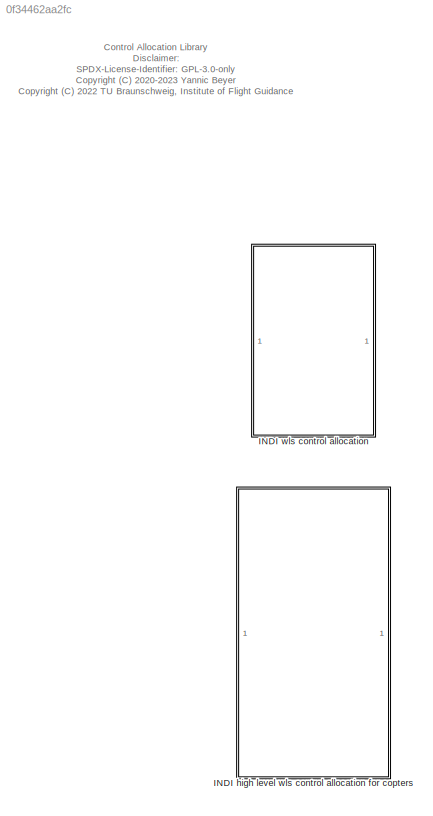
MODEL slx_0f34462aa2fc
KIND library
CONFIG AbsTol = auto
CONFIG EnableMultiTasking = off
CONFIG FixedStep = auto
CONFIG MaxStep = auto
CONFIG MinStep = auto
CONFIG RelTol = 1e-3
CONFIG SampleTimeConstraint = Unconstrained
CONFIG SolverName = VariableStepAuto
CONFIG StartTime = 0.0
CONFIG StopTime = 10.0
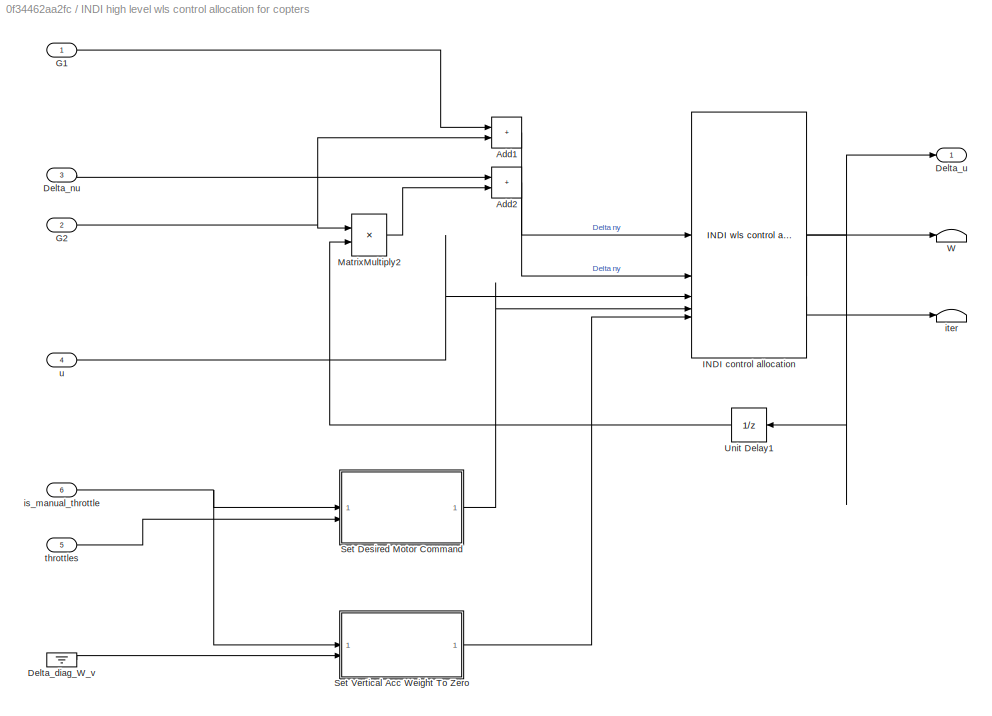
BLOCK [SubSystem] INDI high level wls control allocation for copters
BLOCK [Sum] INDI high level wls control allocation for copters/Add1
  IconShape = rectangular
BLOCK [Sum] INDI high level wls control allocation for copters/Add2
  IconShape = rectangular
BLOCK [Ground] INDI high level wls control allocation for copters/Delta_diag_W_v
BLOCK [Inport] INDI high level wls control allocation for copters/Delta_nu
  Port = 3
BLOCK [Outport] INDI high level wls control allocation for copters/Delta_u
  PortDimensions = length_u
  VectorParamsAs1DForOutWhenUnconnected = off
BLOCK [Inport] INDI high level wls control allocation for copters/G1
BLOCK [Inport] INDI high level wls control allocation for copters/G2
  Port = 2
BLOCK [Reference] INDI high level wls control allocation for copters/INDI control allocation  REF=$bdroot/INDI wls control allocation
  SourceBlock = $bdroot/INDI wls control allocation
BLOCK [Product] INDI high level wls control allocation for copters/MatrixMultiply2
  Multiplication = Matrix(*)
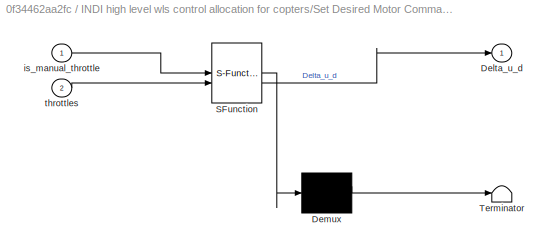
BLOCK [SubSystem] INDI high level wls control allocation for copters/Set Desired Motor Command
  ErrorFcn = Stateflow.Translate.translate
  PermitHierarchicalResolution = ExplicitOnly
  SFBlockType = MATLAB Function
  TreatAsAtomicUnit = on
BLOCK [Demux] INDI high level wls control allocation for copters/Set Desired Motor Command/ Demux 
  Outputs = 1
BLOCK [S-Function] INDI high level wls control allocation for copters/Set Desired Motor Command/ SFunction 
  EnableBusSupport = off
  FunctionName = sf_sfun
  Parameters = ca
  PortCounts = [2 2]
  SFcnIsStateOwnerBlock = off
  SFunctionDeploymentMode = off
  Tag = Stateflow S-Function 10
BLOCK [Terminator] INDI high level wls control allocation for copters/Set Desired Motor Command/ Terminator 
BLOCK [Outport] INDI high level wls control allocation for copters/Set Desired Motor Command/Delta_u_d
  VectorParamsAs1DForOutWhenUnconnected = off
BLOCK [Inport] INDI high level wls control allocation for copters/Set Desired Motor Command/is_manual_throttle
BLOCK [Inport] INDI high level wls control allocation for copters/Set Desired Motor Command/throttles
  Port = 2
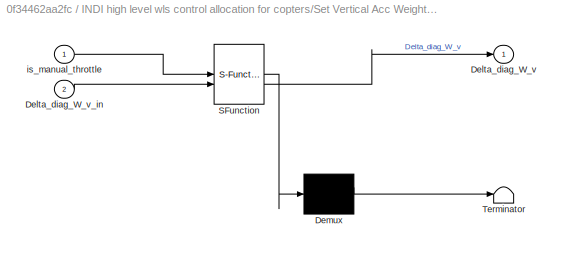
BLOCK [SubSystem] INDI high level wls control allocation for copters/Set Vertical Acc Weight To Zero
  ErrorFcn = Stateflow.Translate.translate
  PermitHierarchicalResolution = ExplicitOnly
  SFBlockType = MATLAB Function
  TreatAsAtomicUnit = on
BLOCK [Demux] INDI high level wls control allocation for copters/Set Vertical Acc Weight To Zero/ Demux 
  Outputs = 1
BLOCK [S-Function] INDI high level wls control allocation for copters/Set Vertical Acc Weight To Zero/ SFunction 
  EnableBusSupport = off
  FunctionName = sf_sfun
  Parameters = ca
  PortCounts = [2 2]
  SFcnIsStateOwnerBlock = off
  SFunctionDeploymentMode = off
  Tag = Stateflow S-Function 9
BLOCK [Terminator] INDI high level wls control allocation for copters/Set Vertical Acc Weight To Zero/ Terminator 
BLOCK [Outport] INDI high level wls control allocation for copters/Set Vertical Acc Weight To Zero/Delta_diag_W_v
  VectorParamsAs1DForOutWhenUnconnected = off
BLOCK [Inport] INDI high level wls control allocation for copters/Set Vertical Acc Weight To Zero/Delta_diag_W_v_in
  Port = 2
BLOCK [Inport] INDI high level wls control allocation for copters/Set Vertical Acc Weight To Zero/is_manual_throttle
BLOCK [UnitDelay] INDI high level wls control allocation for copters/Unit Delay1
  HasFrameUpgradeWarning = on
  SampleTime = -1
BLOCK [Terminator] INDI high level wls control allocation for copters/W
BLOCK [Inport] INDI high level wls control allocation for copters/is_manual_throttle
  Port = 6
BLOCK [Terminator] INDI high level wls control allocation for copters/iter
BLOCK [Inport] INDI high level wls control allocation for copters/throttles
  Port = 5
BLOCK [Inport] INDI high level wls control allocation for copters/u
  Port = 4
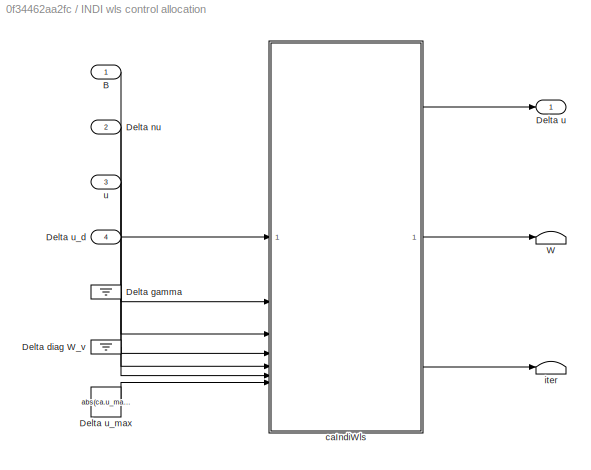
BLOCK [SubSystem] INDI wls control allocation
BLOCK [Inport] INDI wls control allocation/B
BLOCK [Ground] INDI wls control allocation/Delta diag W_v
BLOCK [Ground] INDI wls control allocation/Delta gamma
BLOCK [Inport] INDI wls control allocation/Delta nu
  Port = 2
BLOCK [Outport] INDI wls control allocation/Delta u
  VectorParamsAs1DForOutWhenUnconnected = off
BLOCK [Inport] INDI wls control allocation/Delta u_d
  Port = 4
BLOCK [Constant] INDI wls control allocation/Delta u_max
  Value = abs(ca.u_max-ca.u_min)
BLOCK [Terminator] INDI wls control allocation/W
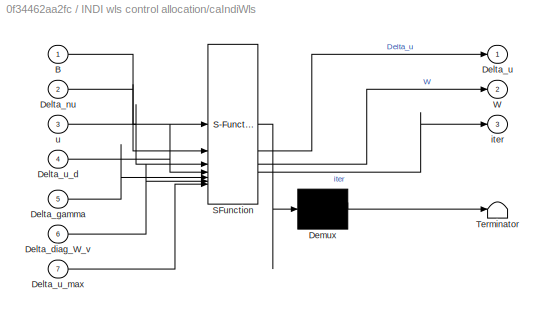
BLOCK [SubSystem] INDI wls control allocation/caIndiWls
  ErrorFcn = Stateflow.Translate.translate
  PermitHierarchicalResolution = ExplicitOnly
  SFBlockType = MATLAB Function
  TreatAsAtomicUnit = on
BLOCK [Demux] INDI wls control allocation/caIndiWls/ Demux 
  Outputs = 1
BLOCK [S-Function] INDI wls control allocation/caIndiWls/ SFunction 
  EnableBusSupport = off
  FunctionName = sf_sfun
  Parameters = ca
  PortCounts = [7 4]
  SFcnIsStateOwnerBlock = off
  SFunctionDeploymentMode = off
  Tag = Stateflow S-Function 5
BLOCK [Terminator] INDI wls control allocation/caIndiWls/ Terminator 
BLOCK [Inport] INDI wls control allocation/caIndiWls/B
BLOCK [Inport] INDI wls control allocation/caIndiWls/Delta_diag_W_v
  Port = 6
BLOCK [Inport] INDI wls control allocation/caIndiWls/Delta_gamma
  Port = 5
BLOCK [Inport] INDI wls control allocation/caIndiWls/Delta_nu
  Port = 2
BLOCK [Outport] INDI wls control allocation/caIndiWls/Delta_u
  VectorParamsAs1DForOutWhenUnconnected = off
BLOCK [Inport] INDI wls control allocation/caIndiWls/Delta_u_d
  Port = 4
BLOCK [Inport] INDI wls control allocation/caIndiWls/Delta_u_max
  Port = 7
BLOCK [Outport] INDI wls control allocation/caIndiWls/W
  Port = 2
  VectorParamsAs1DForOutWhenUnconnected = off
BLOCK [Outport] INDI wls control allocation/caIndiWls/iter
  Port = 3
  VectorParamsAs1DForOutWhenUnconnected = off
BLOCK [Inport] INDI wls control allocation/caIndiWls/u
  Port = 3
BLOCK [Terminator] INDI wls control allocation/iter
BLOCK [Inport] INDI wls control allocation/u
  Port = 3
ANNOTATION (root): Control Allocation Library Disclaimer: SPDX-License-Identifier: GPL-3.0-only <copyright redacted>
CHART INDI wls control allocation/caIndiWls states=1 transitions=1
  STATE_LABEL 'eML_blk_kernel()'
  STATE_LABEL "SCRIPT:\nfunction [ Delta_u, W, iter ] = caIndiWls( B, Delta_nu, u, Delta_u_d, Delta_gamma, Delta_diag_W_v, Delta_u_max, ca)\n[ Delta_u, W, iter ] = caIndiWls( ca, ...\n    B, Delta_nu, u, ...\n    'DeltaUd', Delta_u_d, 'DeltaGamma', Delta_gamma, ...\n    'DeltaDiagWv', Delta_diag_W_v, 'DeltaUmax', Delta_u_max );\nend"
CHART INDI high level wls control allocation
for copters/Set Vertical Acc Weight To Zero states=1 transitions=1
  STATE_LABEL 'eML_blk_kernel()'
  STATE_LABEL 'SCRIPT:\nfunction Delta_diag_W_v = fcn(is_manual_throttle, Delta_diag_W_v_in, ca)\nDelta_diag_W_v = zeros(length(ca.W_v),1,class(ca.W_v));\nDelta_diag_W_v(:) = Delta_diag_W_v_in;\nif size(ca.W_v,1) == size(ca.W_v,2)\n    W_v = diag(ca.W_v);\nelse\n    W_v = ca.W_v;\nend\nif is_manual_throttle\n    Delta_diag_W_v(4) = -W_v(4);\n    Delta_diag_W_v(1) = -W_v(1)+1;\n    Delta_diag_W_v(2) = -W_v(2)+1;\nend'
CHART INDI high level wls control allocation
for copters/Set Desired Motor Command states=1 transitions=1
  STATE_LABEL 'eML_blk_kernel()'
  STATE_LABEL 'SCRIPT:\nfunction Delta_u_d = fcn(is_manual_throttle, throttles, ca)\nDelta_u_d = zeros(size(ca.u_d));\nif is_manual_throttle\n    for i = 1:length(Delta_u_d)\n        Delta_u_d(i) = max(ca.u_min(i),min(ca.u_max(i),throttles(i)))-ca.u_d(i);\n    end\nend'
CHART  states=0 transitions=0
CHART  states=0 transitions=0
CHART  states=0 transitions=0
